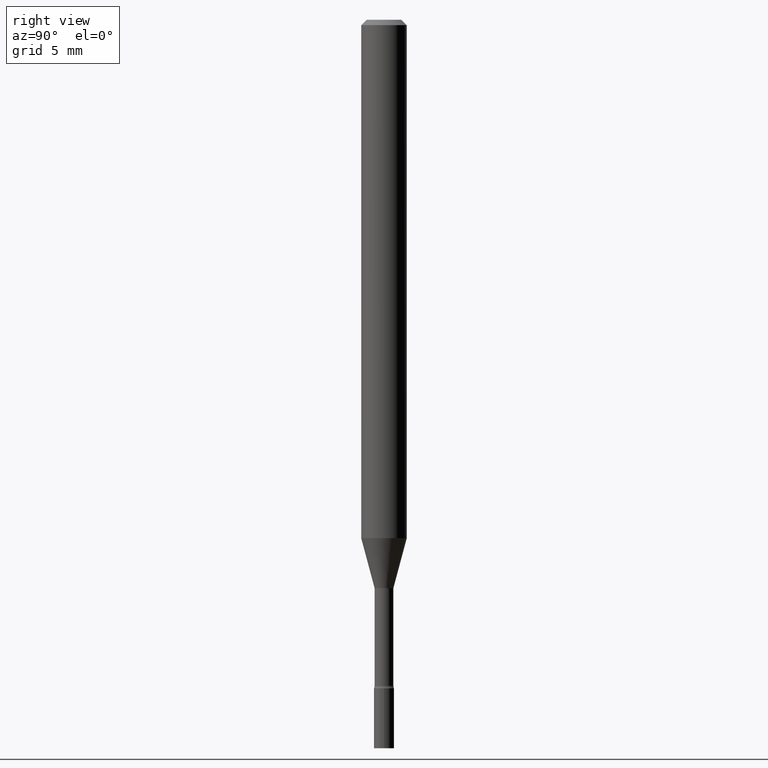
[diagram: clean part render]
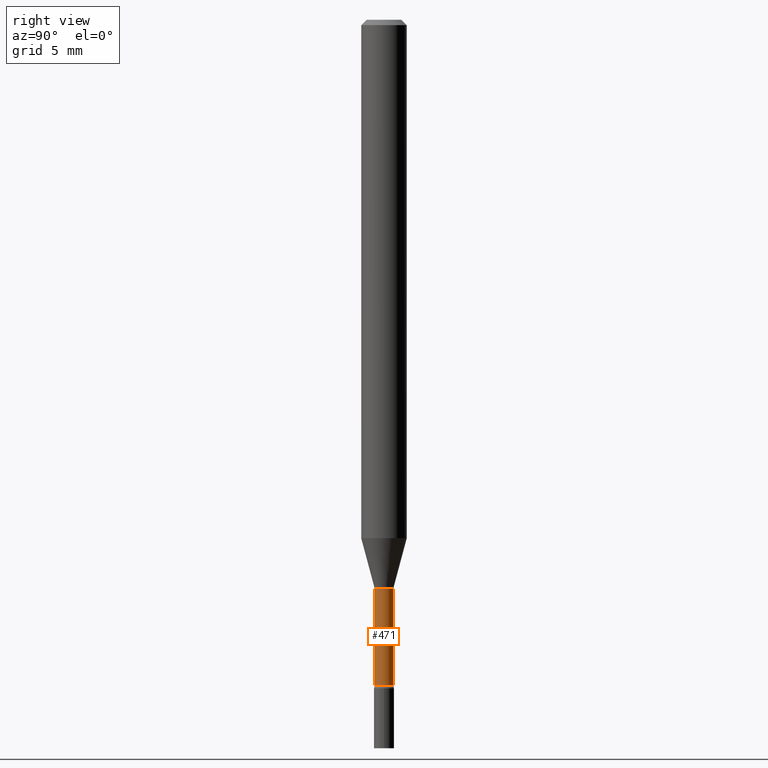
[diagram: same view with one face highlighted and labeled with its STEP entity id]
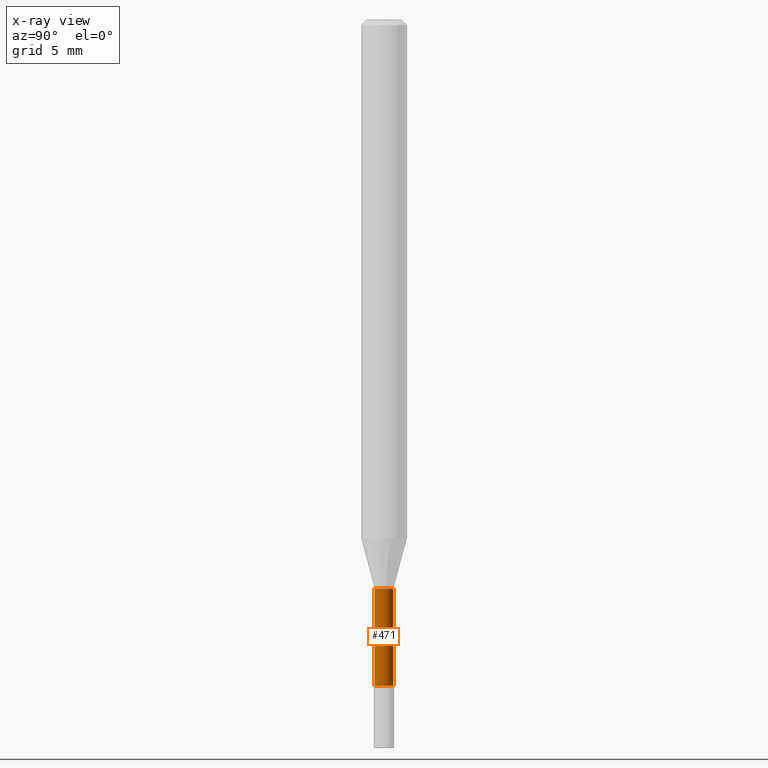
[diagram: x-ray of the same camera — body ghosted, the highlighted face saturated]
A machine part, right view. The second image highlights one B-rep face of the part: STEP entity #471.
The next image is the same camera in x-ray: the body ghosted, the highlighted face saturated — about 0% of this face is hidden behind the body in this view.
In plain terms, the highlighted cylindrical surface (edge-blend (fillet) strip) has radius 0.6566 mm, axis along (-0, 0, 1).
Its self-contained STEP definition (entity closure, byte-faithful):
#8 = ORIENTED_EDGE ( 'NONE', *, *, #456, .F. ) ;
#17 = LINE ( 'NONE', #271, #463 ) ;
#24 = CARTESIAN_POINT ( 'NONE',  ( -1.805095852181458995E-16, -0.02585000000000647197, -1.828160592130893436 ) ) ;
#27 = CARTESIAN_POINT ( 'NONE',  ( 0.000000000000000000, 0.000000000000000000, 0.000000000000000000 ) ) ;
#31 = VERTEX_POINT ( 'NONE', #24 ) ;
#38 = CIRCLE ( 'NONE', #200, 0.02584999999999999798 ) ;
#94 = CARTESIAN_POINT ( 'NONE',  ( 3.819711730312051793E-29, -5.453675833256950952E-15, -1.561974787463811021 ) ) ;
#106 = VECTOR ( 'NONE', #223, 39.37007874015748143 ) ;
#107 = DIRECTION ( 'NONE',  ( -2.445437507038217462E-29, 3.491526161002970435E-15, 1.000000000000000000 ) ) ;
#135 = EDGE_CURVE ( 'NONE', #168, #366, #38, .T. ) ;
#136 = DIRECTION ( 'NONE',  ( -6.982962677686266711E-15, -1.000000000000000000, 0.000000000000000000 ) ) ;
#158 = AXIS2_PLACEMENT_3D ( 'NONE', #27, #239, #230 ) ;
#168 = VERTEX_POINT ( 'NONE', #303 ) ;
#185 = EDGE_CURVE ( 'NONE', #259, #366, #17, .T. ) ;
#200 = AXIS2_PLACEMENT_3D ( 'NONE', #94, #260, #136 ) ;
#209 = CARTESIAN_POINT ( 'NONE',  ( 4.470652480886083161E-29, -6.383070533939695711E-15, -1.828160592130893436 ) ) ;
#223 = DIRECTION ( 'NONE',  ( -2.445437507038217462E-29, 3.491526161002970435E-15, 1.000000000000000000 ) ) ;
#227 = CYLINDRICAL_SURFACE ( 'NONE', #158, 0.02585000000000004655 ) ;
#230 = DIRECTION ( 'NONE',  ( -6.982962677686265922E-15, -1.000000000000000000, 3.491526161002970830E-15 ) ) ;
#237 = ORIENTED_EDGE ( 'NONE', *, *, #503, .T. ) ;
#239 = DIRECTION ( 'NONE',  ( -2.445437507038217742E-29, 3.491526161002970435E-15, 1.000000000000000000 ) ) ;
#259 = VERTEX_POINT ( 'NONE', #297 ) ;
#260 = DIRECTION ( 'NONE',  ( -2.445437507038217742E-29, 3.491526161002970435E-15, 1.000000000000000000 ) ) ;
#261 = DIRECTION ( 'NONE',  ( -6.982962677686265922E-15, -1.000000000000000000, 0.000000000000000000 ) ) ;
#271 = CARTESIAN_POINT ( 'NONE',  ( 1.836752971939862042E-16, 0.02585000000000004655, -9.025595126192696119E-17 ) ) ;
#280 = ORIENTED_EDGE ( 'NONE', *, *, #135, .F. ) ;
#297 = CARTESIAN_POINT ( 'NONE',  ( 1.895372747640517446E-16, 0.02584999999999370787, -1.828160592130893436 ) ) ;
#303 = CARTESIAN_POINT ( 'NONE',  ( -1.805095852181517913E-16, -0.02585000000000545542, -1.561974787463811021 ) ) ;
#348 = CARTESIAN_POINT ( 'NONE',  ( 1.836752971940308241E-16, 0.02584999999999454748, -1.561974787463811021 ) ) ;
#355 = FACE_OUTER_BOUND ( 'NONE', #520, .T. ) ;
#366 = VERTEX_POINT ( 'NONE', #348 ) ;
#371 = DIRECTION ( 'NONE',  ( -2.445437507038217742E-29, 3.491526161002970435E-15, 1.000000000000000000 ) ) ;
#395 = AXIS2_PLACEMENT_3D ( 'NONE', #209, #371, #261 ) ;
#417 = CARTESIAN_POINT ( 'NONE',  ( -1.805095852181902976E-16, -0.02585000000000004655, 9.025595126192696119E-17 ) ) ;
#435 = ORIENTED_EDGE ( 'NONE', *, *, #185, .T. ) ;
#452 = CIRCLE ( 'NONE', #395, 0.02585000000000008819 ) ;
#456 = EDGE_CURVE ( 'NONE', #31, #168, #465, .T. ) ;
#463 = VECTOR ( 'NONE', #107, 39.37007874015748143 ) ;
#465 = LINE ( 'NONE', #417, #106 ) ;
#471 = ADVANCED_FACE ( 'NONE', ( #355 ), #227, .T. ) ;
#503 = EDGE_CURVE ( 'NONE', #31, #259, #452, .T. ) ;
#520 = EDGE_LOOP ( 'NONE', ( #237, #435, #280, #8 ) ) ;